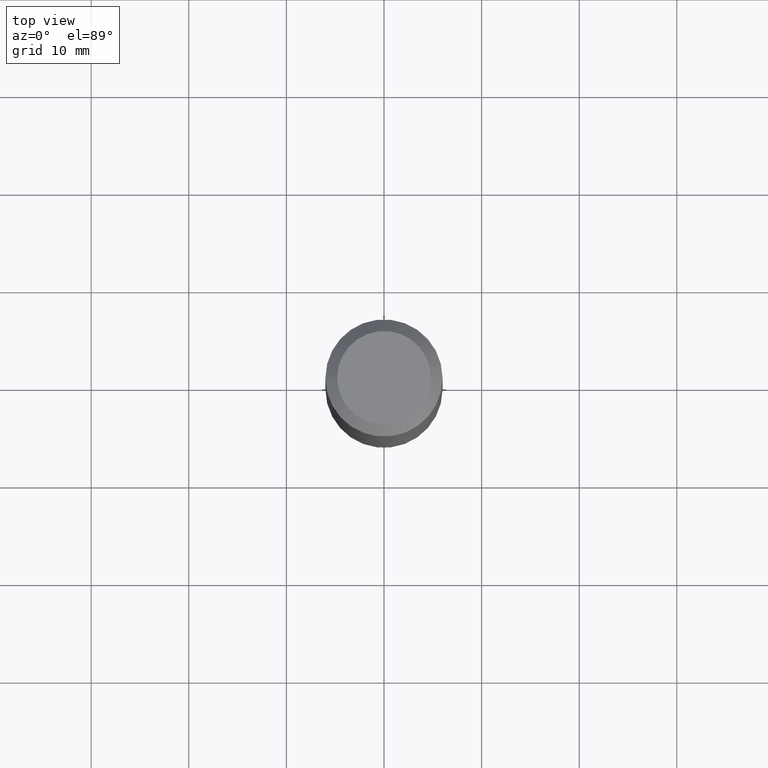
[diagram: clean part render]
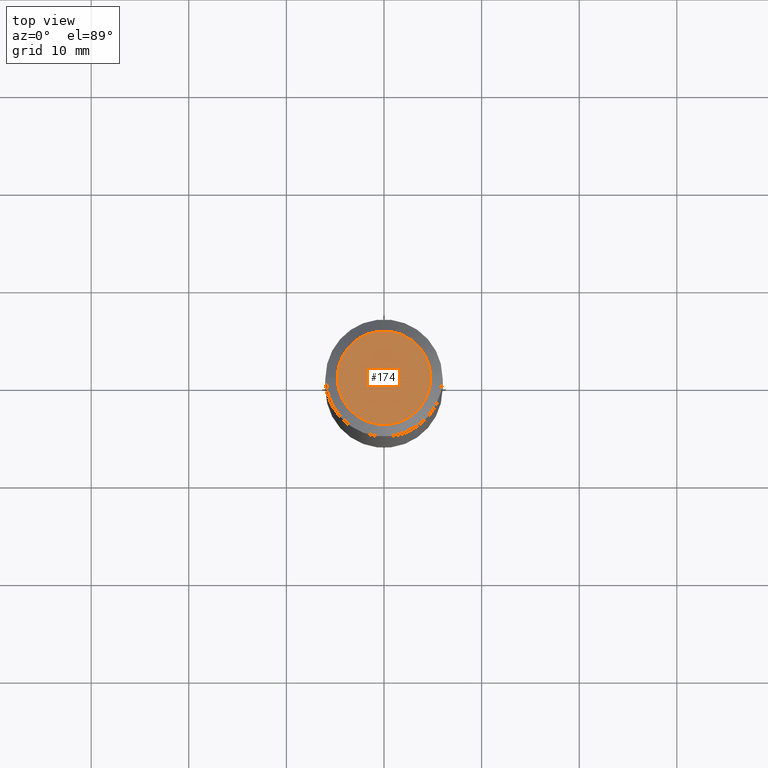
[diagram: same view with one face highlighted and labeled with its STEP entity id]
A machine part, top view. The second image highlights one B-rep face of the part: STEP entity #174.
In plain terms, the highlighted planar face has unit normal (-0, 0, -1).
Its self-contained STEP definition (entity closure, byte-faithful):
#14 = EDGE_LOOP ( 'NONE', ( #77 ) ) ;
#15 = FACE_OUTER_BOUND ( 'NONE', #14, .T. ) ;
#55 = CIRCLE ( 'NONE', #175, 4.799999999999996270 ) ;
#70 = VERTEX_POINT ( 'NONE', #135 ) ;
#73 = DIRECTION ( 'NONE',  ( -1.000000000000000000, 0.0000000000000000000, 6.982962677686266711E-15 ) ) ;
#77 = ORIENTED_EDGE ( 'NONE', *, *, #122, .F. ) ;
#80 = PLANE ( 'NONE',  #156 ) ;
#98 = DIRECTION ( 'NONE',  ( -1.000000000000000000, 0.0000000000000000000, 6.982962677686266711E-15 ) ) ;
#99 = DIRECTION ( 'NONE',  ( -6.982962677686266711E-15, 0.0000000000000000000, -1.000000000000000000 ) ) ;
#110 = DIRECTION ( 'NONE',  ( -6.982962677686266711E-15, 0.0000000000000000000, -1.000000000000000000 ) ) ;
#122 = EDGE_CURVE ( 'NONE', #70, #70, #55, .T. ) ;
#135 = CARTESIAN_POINT ( 'NONE',  ( -4.799999999999996270, 0.0000000000000000000, 3.351822085289405497E-14 ) ) ;
#141 = CARTESIAN_POINT ( 'NONE',  ( 0.0000000000000000000, 0.0000000000000000000, 0.0000000000000000000 ) ) ;
#156 = AXIS2_PLACEMENT_3D ( 'NONE', #164, #110, #73 ) ;
#164 = CARTESIAN_POINT ( 'NONE',  ( -1.597216999339167176E-30, 0.0000000000000000000, -2.287305650999682681E-16 ) ) ;
#174 = ADVANCED_FACE ( 'NONE', ( #15 ), #80, .F. ) ;
#175 = AXIS2_PLACEMENT_3D ( 'NONE', #141, #99, #98 ) ;